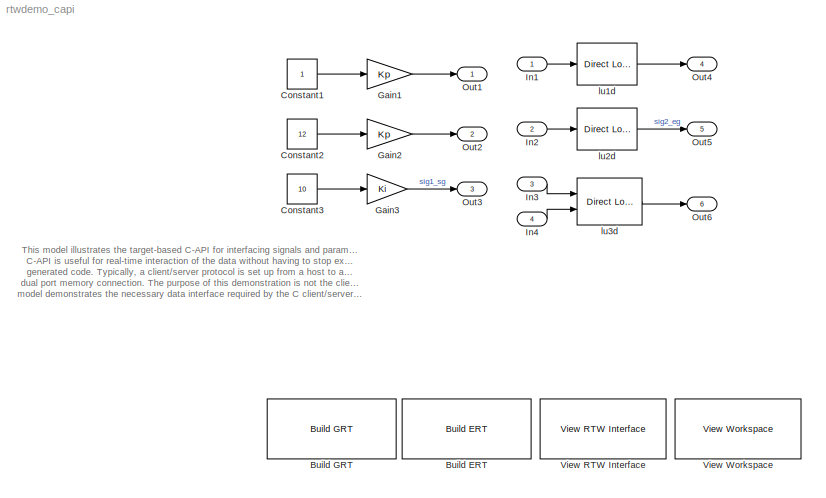
MODEL rtwdemo_capi
KIND model
CONFIG PostLoadFcn = rtwdemo_capi_data
BLOCK [Reference] Build ERT  REF=rtwdemowidgets/Build ERT
  Ports = []
  ShowPortLabels = on
  SourceBlock = rtwdemowidgets/Build ERT
  attrib_overrides = {'RTWCAPIParams','RTWCAPISignals'}
BLOCK [Reference] Build GRT  REF=rtwdemowidgets/Build GRT
  Ports = []
  ShowPortLabels = on
  SourceBlock = rtwdemowidgets/Build GRT
  attrib_overrides = {'RTWCAPIParams','RTWCAPISignals'}
BLOCK [Constant] Constant1
BLOCK [Constant] Constant2
  Value = 12
BLOCK [Constant] Constant3
  Value = 10
BLOCK [Gain] Gain1
  Gain = Kp
BLOCK [Gain] Gain2
  Gain = Kp
BLOCK [Gain] Gain3
  Gain = Ki
BLOCK [Inport] In1
  IconDisplay = Port number
  LatchInput = off
  Port = 1
BLOCK [Inport] In2
  IconDisplay = Port number
  LatchInput = off
  Port = 2
BLOCK [Inport] In3
  IconDisplay = Port number
  LatchInput = off
  Port = 3
BLOCK [Inport] In4
  IconDisplay = Port number
  LatchInput = off
  Port = 4
BLOCK [Outport] Out1
  BusOutputAsStruct = off
  IconDisplay = Port number
BLOCK [Outport] Out2
  BusOutputAsStruct = off
  IconDisplay = Port number
  Port = 2
BLOCK [Outport] Out3
  BusOutputAsStruct = off
  IconDisplay = Port number
  Port = 3
BLOCK [Outport] Out4
  BusOutputAsStruct = off
  IconDisplay = Port number
  Port = 4
BLOCK [Outport] Out5
  BusOutputAsStruct = off
  IconDisplay = Port number
  Port = 5
BLOCK [Outport] Out6
  BusOutputAsStruct = off
  IconDisplay = Port number
  Port = 6
BLOCK [Reference] View RTW Interface  REF=rtwdemowidgets/View RTW Interface
  Ports = []
  ShowPortLabels = on
  SourceBlock = rtwdemowidgets/View RTW Interface
BLOCK [Reference] View Workspace  REF=rtwdemowidgets/View Workspace
  Ports = []
  ShowPortLabels = on
  SourceBlock = rtwdemowidgets/View Workspace
BLOCK [Reference] lu1d  REF=simulink/Lookup\nTables/Direct Lookup\nTable (n-D)
  Ports = [1, 1]
  Priority = 5
  SourceBlock = simulink/Lookup\nTables/Direct Lookup\nTable (n-D)
  SourceType = LookupNDDirect
  clipFlag = Warning
  explicitNumDims = 1
  maskTabDims = 1
  mxTable = p1
  outDims = Element
  tabIsInput = off
BLOCK [Reference] lu2d  REF=simulink/Lookup\nTables/Direct Lookup\nTable (n-D)
  Ports = [1, 1]
  Priority = 6
  SourceBlock = simulink/Lookup\nTables/Direct Lookup\nTable (n-D)
  SourceType = LookupNDDirect
  clipFlag = Warning
  explicitNumDims = 1
  maskTabDims = 2
  mxTable = p2
  outDims = Column
  tabIsInput = off
BLOCK [Reference] lu3d  REF=simulink/Lookup\nTables/Direct Lookup\nTable (n-D)
  Ports = [2, 1]
  Priority = 7
  SourceBlock = simulink/Lookup\nTables/Direct Lookup\nTable (n-D)
  SourceType = LookupNDDirect
  clipFlag = Warning
  explicitNumDims = 1
  maskTabDims = 3
  mxTable = p3
  outDims = Column
  tabIsInput = off
ANNOTATION (root): This model illustrates the target-based C-API for interfacing signals and parameters in the generated code. The\nC-API is useful for real-time interaction of the data without having to stop execution or recompile the\ngenerated code. Typically, a client/server protocol is set up from a host to a target using serial, TC/PIP or\ndual port memory connection. The purpose of this demonstration is not t...<+336ch>
LINE Constant1:1 -> Gain1:1
LINE Constant2:1 -> Gain2:1
LINE Constant3:1 -> Gain3:1
LINE Gain1:1 -> Out1:1
LINE Gain2:1 -> Out2:1
LINE Gain3:1 -> Out3:1
LINE In1:1 -> lu1d:1
LINE In2:1 -> lu2d:1
LINE In3:1 -> lu3d:1
LINE In4:1 -> lu3d:2
LINE lu1d:1 -> Out4:1
LINE lu2d:1 -> Out5:1
LINE lu3d:1 -> Out6:1
